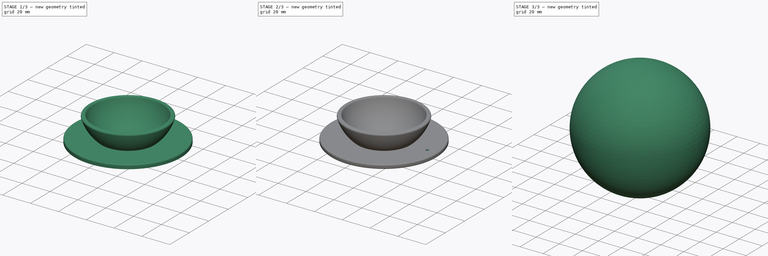
[diagram: build sequence overview — one tinted view per stage of 3, left to right]
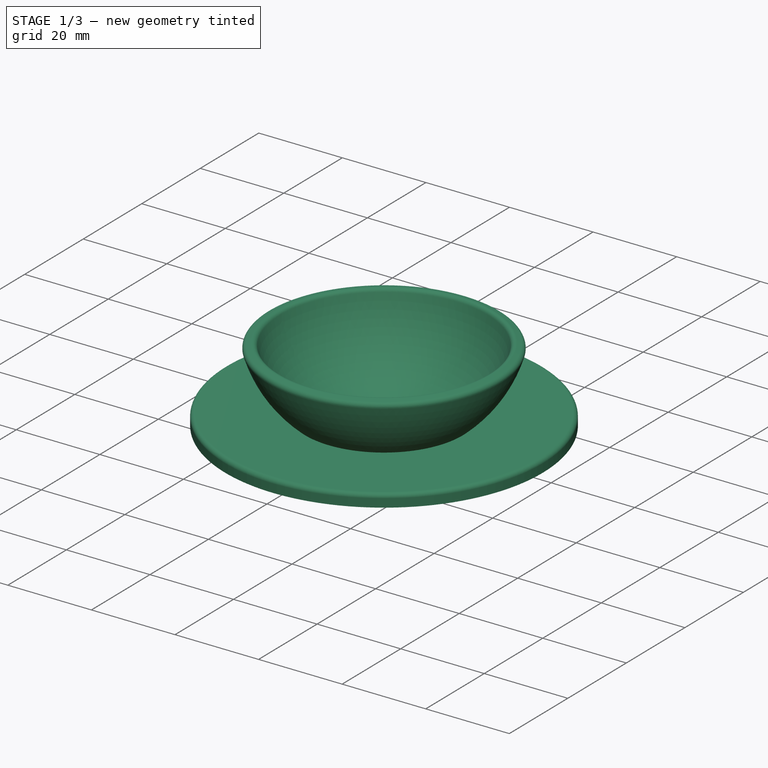
[diagram: stage 1 of 3 — iso view after this stage's code; geometry added in this stage tinted green]
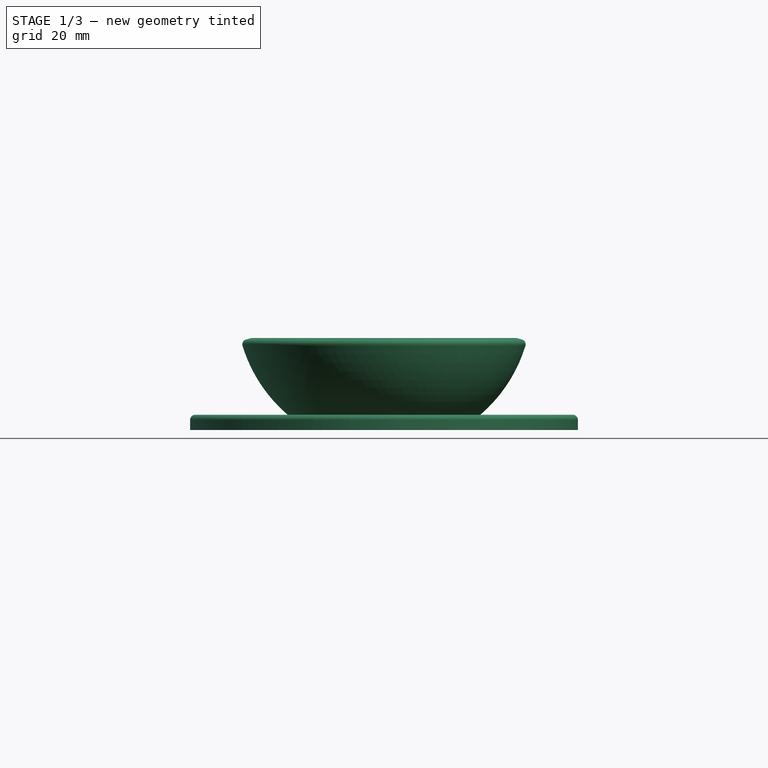
[diagram: stage 1 of 3 — front view after this stage's code; geometry added in this stage tinted green]
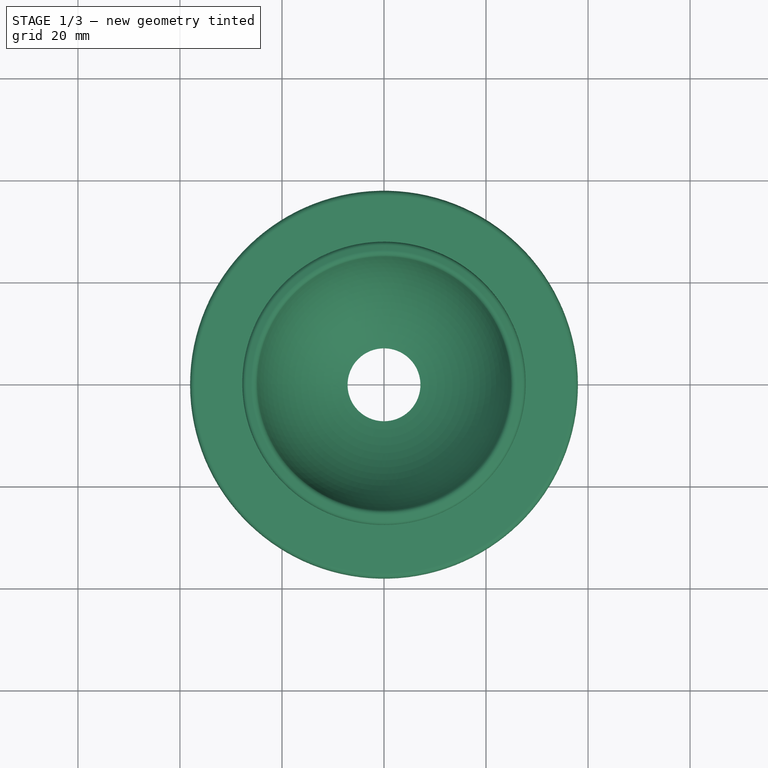
[diagram: stage 1 of 3 — top view after this stage's code; geometry added in this stage tinted green]
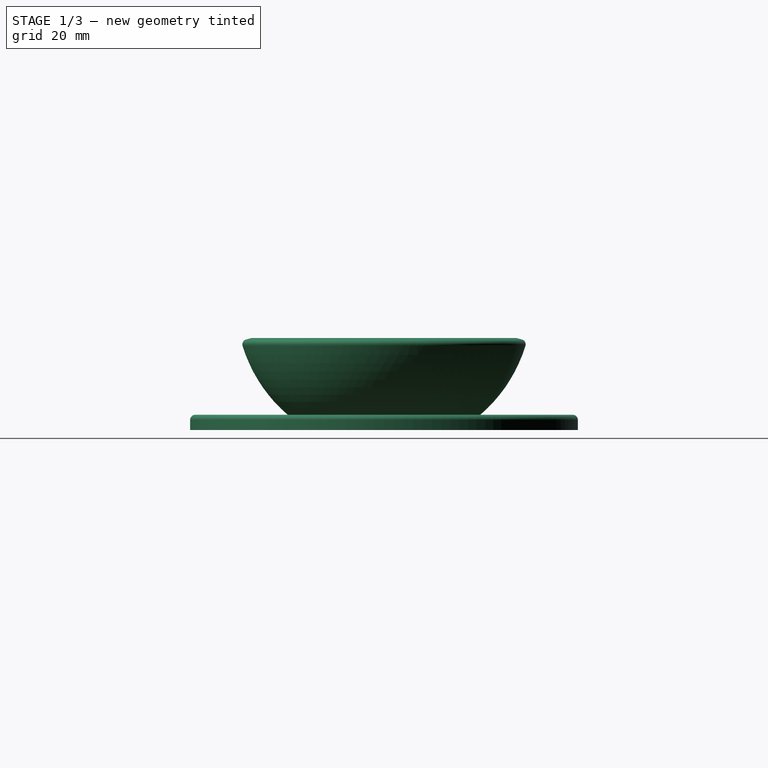
[diagram: stage 1 of 3 — right view after this stage's code; geometry added in this stage tinted green]
FCSTD DOCUMENT  (FreeCAD 1.0R39319 (Git))
Label: mouse
License: All rights reserved
LicenseURL: https://en.wikipedia.org/wiki/All_rights_reserved
objects: PartDesign::Body×2, PartDesign::AdditiveSphere×1, Sketcher::SketchObject×1, PartDesign::Revolution×1, PartDesign::Fillet×1, PartDesign::Chamfer×1, PartDesign::SubtractiveCylinder×1, PartDesign::PolarPattern×1
note: 21 computed .brp shape members not serialized (recipe doc carries the construction recipe); baked Part::Feature solids carry a one-line shape summary decoded from their .brp

FEATURE [PartDesign::Body] Body  label="trackBall"
  AllowCompound = false
  Group = -> [Sphere]
  Origin = -> Origin
  Tip = -> Sphere
FEATURE [Sketcher::SketchObject] Sketch
  ArcFitTolerance = 1e-06
  AttachmentSupport = -> [XZ_Plane001]
  FullyConstrained = true
  MakeInternals = false
  MapMode = 5
  Placement = pos=(0,0,0) rot=(1,0,0;1.5708rad)
  sketch-geometry (9):
    g0: ArcOfCircle [constr] CenterX=0 CenterY=29 CenterZ=0 NormalX=0 NormalY=0 NormalZ=1 AngleXU=0 Radius=26 StartAngle=3.40339 EndAngle=4.71239
    g1: ArcOfCircle [constr] CenterX=0 CenterY=29 CenterZ=0 NormalX=0 NormalY=0 NormalZ=1 AngleXU=0 Radius=29 StartAngle=3.40339 EndAngle=4.71239
    g2: LineSegment [constr] StartX=-28.0118 StartY=21.4942 StartZ=0 EndX=0 EndY=29 EndZ=0
    g3: LineSegment StartX=-7.14143 StartY=4 StartZ=0 EndX=-38.0118 EndY=4 EndZ=0
    g4: LineSegment StartX=-38.0118 StartY=4 StartZ=0 EndX=-38.0118 EndY=7 EndZ=0
    g5: LineSegment StartX=-38.0118 StartY=7 StartZ=0 EndX=-18.8944 EndY=7 EndZ=0
    g6: ArcOfCircle CenterX=2.77e-14 CenterY=29 CenterZ=0 NormalX=0 NormalY=0 NormalZ=1 AngleXU=0 Radius=29 StartAngle=3.40339 EndAngle=4.00279
    g7: ArcOfCircle CenterX=2.77e-14 CenterY=29 CenterZ=0 NormalX=0 NormalY=0 NormalZ=1 AngleXU=0 Radius=26 StartAngle=3.40339 EndAngle=4.43414
    g8: LineSegment StartX=-28.0118 StartY=21.4942 StartZ=0 EndX=-25.1141 EndY=22.2707 EndZ=0
  constraints (27):
    c: PointOnObject(g0,g-2)
    c: Coincident(g1,g0)
    c: Distance(g1,g0) = 3
    c: Coincident(g1,g-1)
    c: PointOnObject(g0,g-2)
    c: Coincident(g2,g1)
    c: Coincident(g2,g0)
    c: PointOnObject(g0,g2)
    c: Horizontal(g3)
    c: Coincident(g4,g3)
    c: Vertical(g4)
    c: Coincident(g5,g4)
    c: PointOnObject(g5,g1)
    c: Horizontal(g5)
    c: PointOnObject(g3,g0)
    c: Radius(g0) = 26
    c: DistanceY(g4,g4) = 3
    c: Distance(g-1,g3) = 4
    c: Coincident(g7,g6)
    c: Coincident(g7,g3)
    c: Coincident(g7,g0)
    c: Coincident(g6,g5)
    c: Coincident(g6,g1)
    c: Angle(g2,g-2) = 1.309
    c: Distance(g1,g4) = 10
    c: Coincident(g8,g1)
    c: Coincident(g8,g0)
FEATURE [PartDesign::Revolution] Revolution
  Angle = 360
  Angle2 = 60
  Axis = (0,2e-16,1)
  Base = (0,0,0)
  Placement = pos=(0,0,0) rot=(1,0,0;1.5708rad)
  Profile = -> Sketch
  ReferenceAxis = -> Sketch [V_Axis]
  Refine = true
  Suppressed = false
  Type = 0
FEATURE [PartDesign::Fillet] Fillet
  Base = -> Revolution [Edge8,Edge6,Edge3]
  BaseFeature = -> Revolution
  Placement = pos=(0,0,0) rot=(1,0,0;1.5708rad)
  Radius = 1
  Refine = true
  SupportTransform = false
  Suppressed = false
  UseAllEdges = false
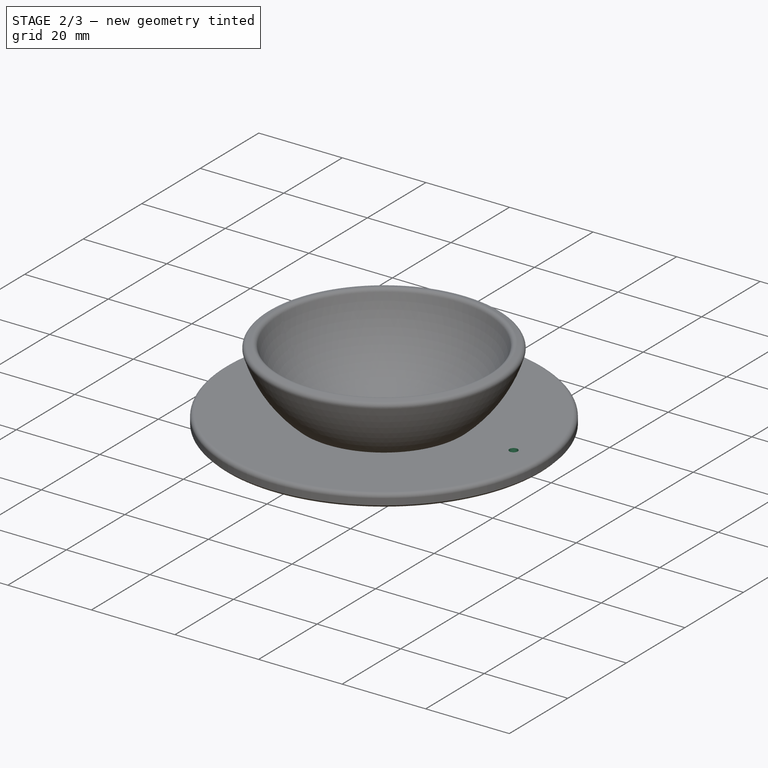
[diagram: stage 2 of 3 — iso view after this stage's code; geometry added in this stage tinted green]
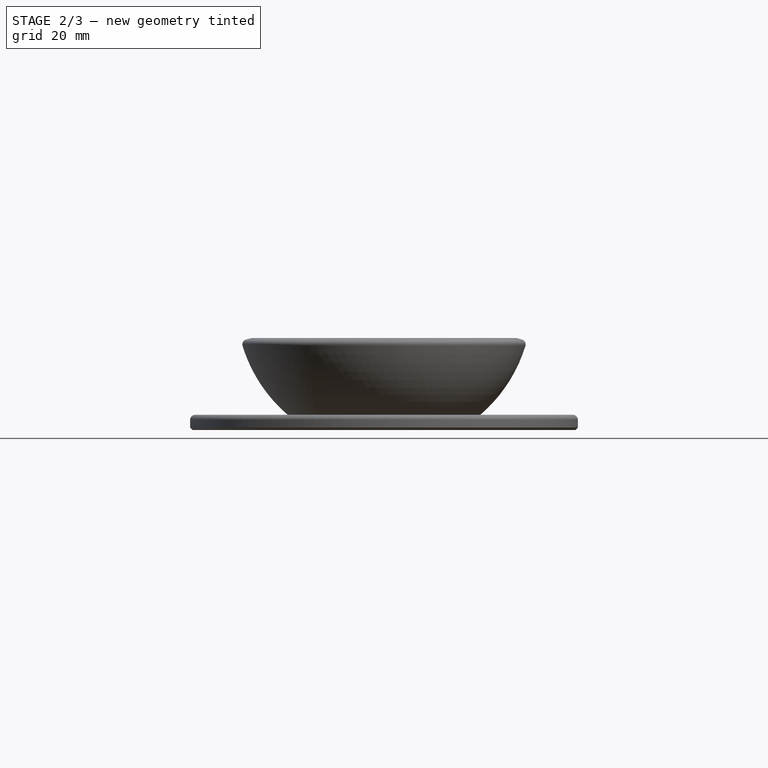
[diagram: stage 2 of 3 — front view after this stage's code; geometry added in this stage tinted green]
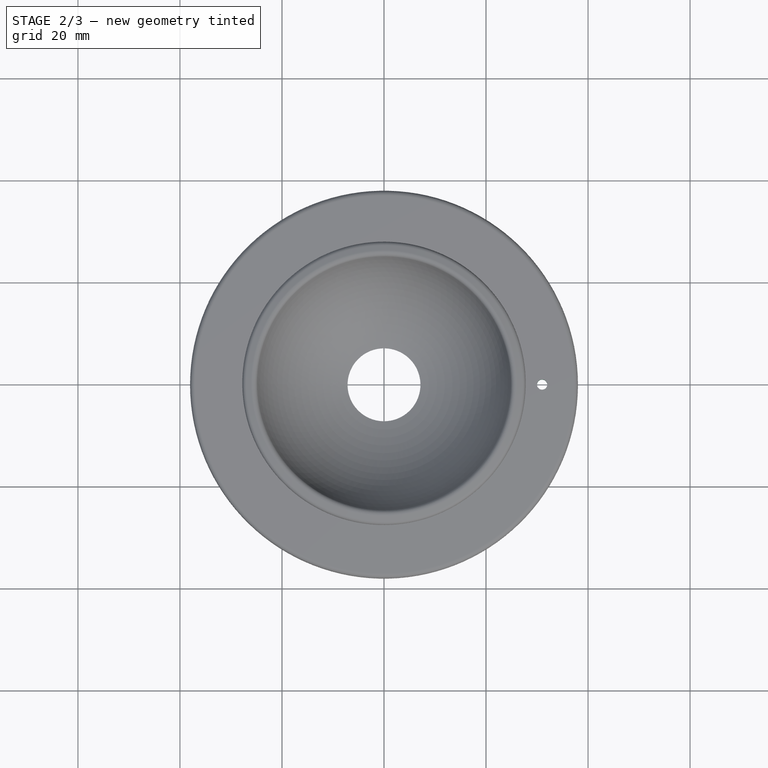
[diagram: stage 2 of 3 — top view after this stage's code; geometry added in this stage tinted green]
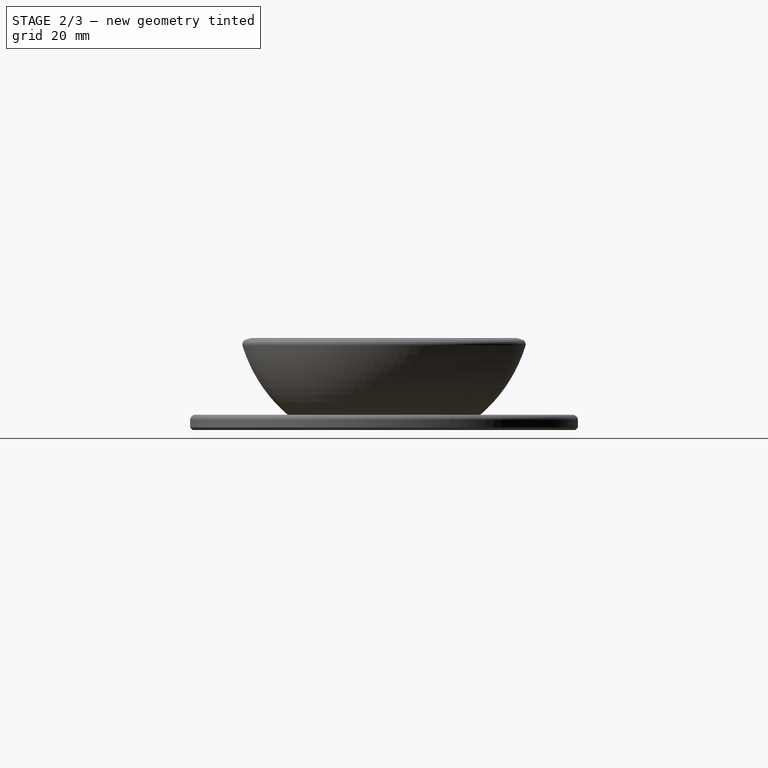
[diagram: stage 2 of 3 — right view after this stage's code; geometry added in this stage tinted green]
FEATURE [PartDesign::Chamfer] Chamfer
  Angle = 45
  Base = -> Fillet [Edge3]
  BaseFeature = -> Fillet
  ChamferType = 0
  FlipDirection = false
  Placement = pos=(0,0,0) rot=(1,0,0;1.5708rad)
  Refine = true
  Size = 0.5
  Size2 = 1
  SupportTransform = false
  Suppressed = false
  UseAllEdges = false
FEATURE [PartDesign::SubtractiveCylinder] Cylinder
  Angle = 360
  AttacherType = Attacher::AttachEngine3D
  AttachmentOffset = pos=(31,0,0) rot=(0,0,1;0rad)
  AttachmentSupport = -> [X_Axis001]
  BaseFeature = -> Chamfer
  FirstAngle = 0
  Height = 10
  MapMode = 2
  Placement = pos=(31,0,0) rot=(0,0,1;0rad)
  Radius = 1
  Refine = true
  SecondAngle = 0
  Suppressed = false
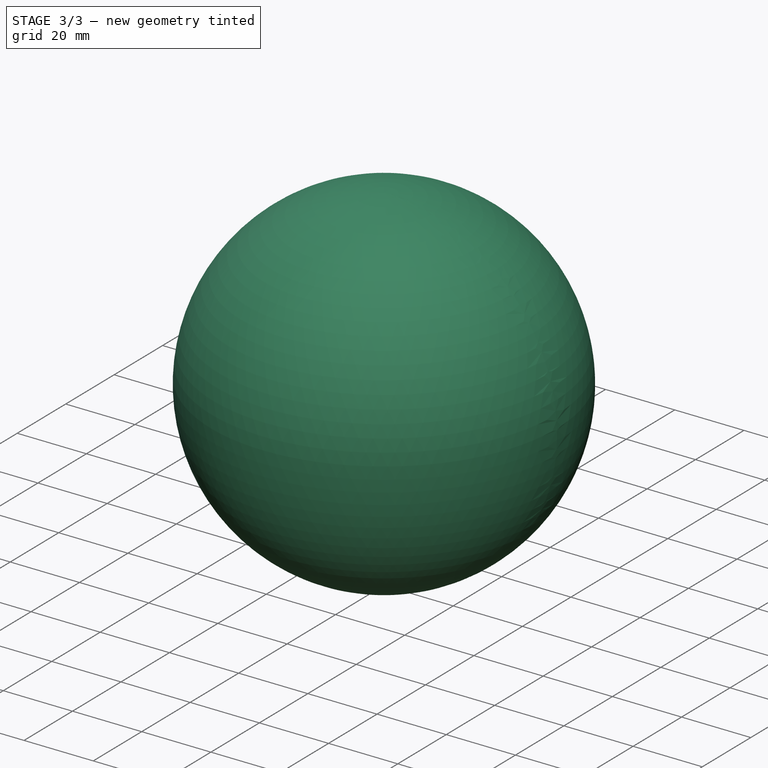
[diagram: stage 3 of 3 — iso view after this stage's code; geometry added in this stage tinted green]
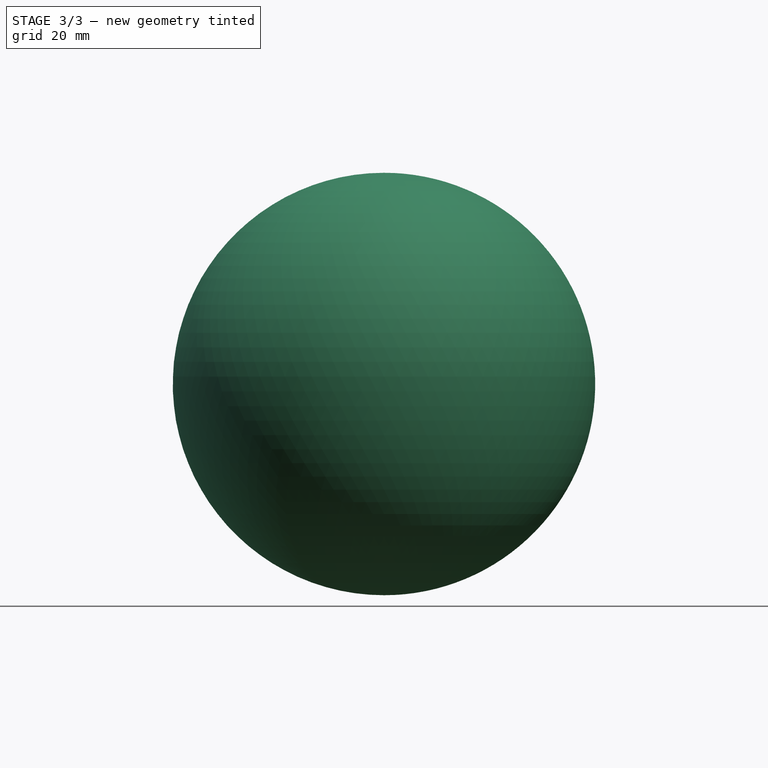
[diagram: stage 3 of 3 — front view after this stage's code; geometry added in this stage tinted green]
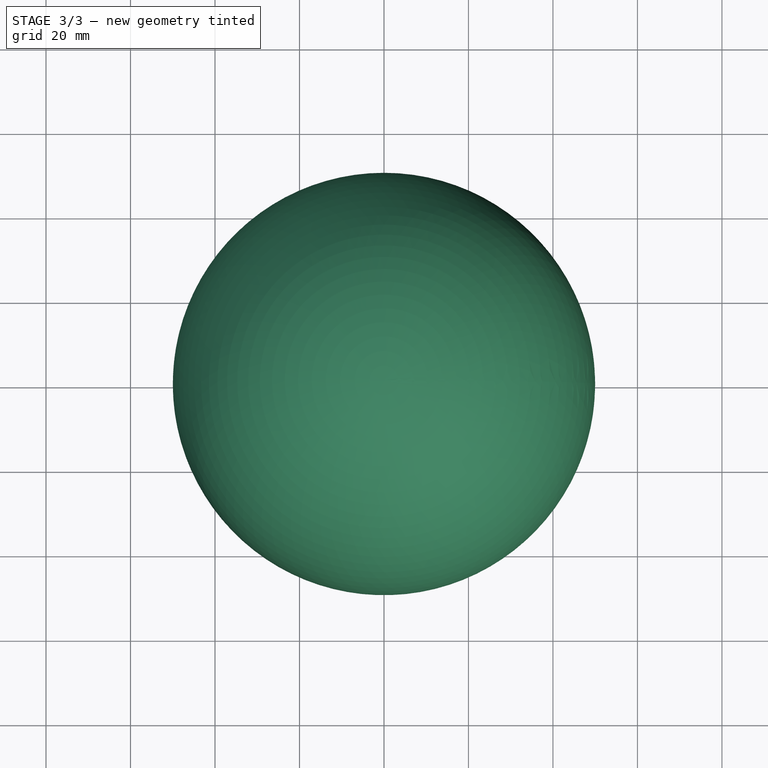
[diagram: stage 3 of 3 — top view after this stage's code; geometry added in this stage tinted green]
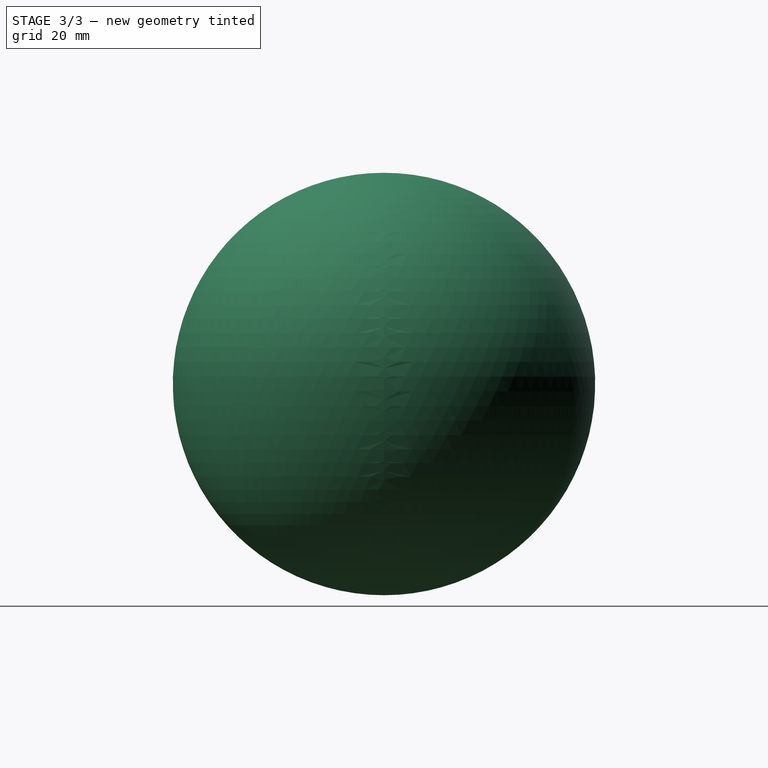
[diagram: stage 3 of 3 — right view after this stage's code; geometry added in this stage tinted green]
FEATURE [PartDesign::AdditiveSphere] Sphere
  Angle1 = -90
  Angle2 = 90
  Angle3 = 360
  AttacherType = Attacher::AttachEngine3D
  AttachmentSupport = -> [XY_Plane]
  MapMode = 5
  Radius = 50
  Refine = true
  Suppressed = false
FEATURE [PartDesign::PolarPattern] PolarPattern
  Angle = 360
  Axis = -> Z_Axis001
  BaseFeature = -> Cylinder
  Mode = 0
  Occurrences = 4
  Offset = 120
  Originals = -> [Cylinder]
  Placement = pos=(31,0,0) rot=(0,0,1;0rad)
  Refine = true
  Suppressed = false
  TransformMode = 0
FEATURE [PartDesign::Body] Body001  label="ballHousing"
  AllowCompound = false
  Group = -> [Sketch,Revolution,Fillet,Chamfer,Cylinder,PolarPattern]
  Origin = -> Origin001
  Tip = -> PolarPattern
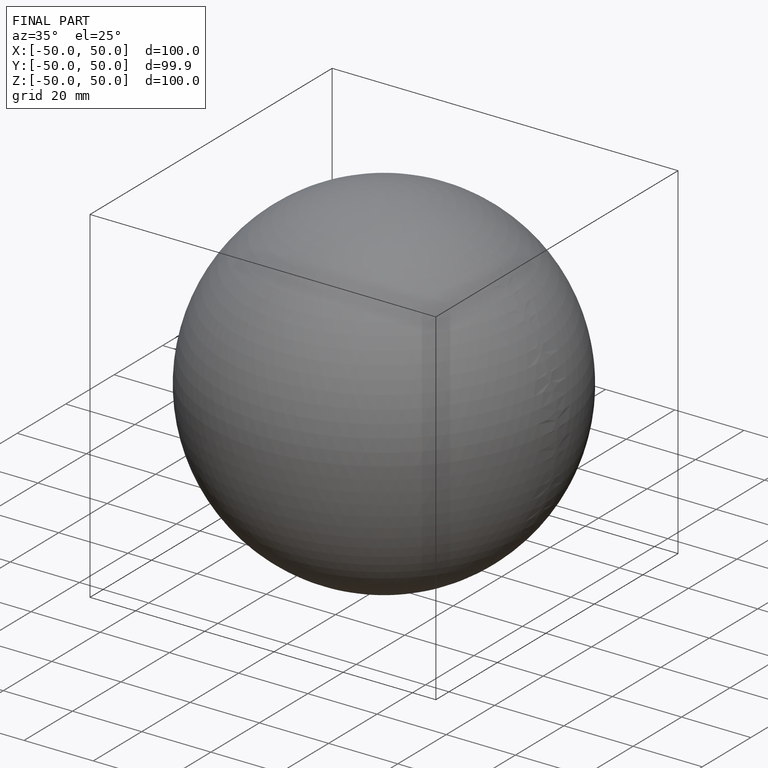
[diagram: finished part — iso view with bounding-box wireframe]
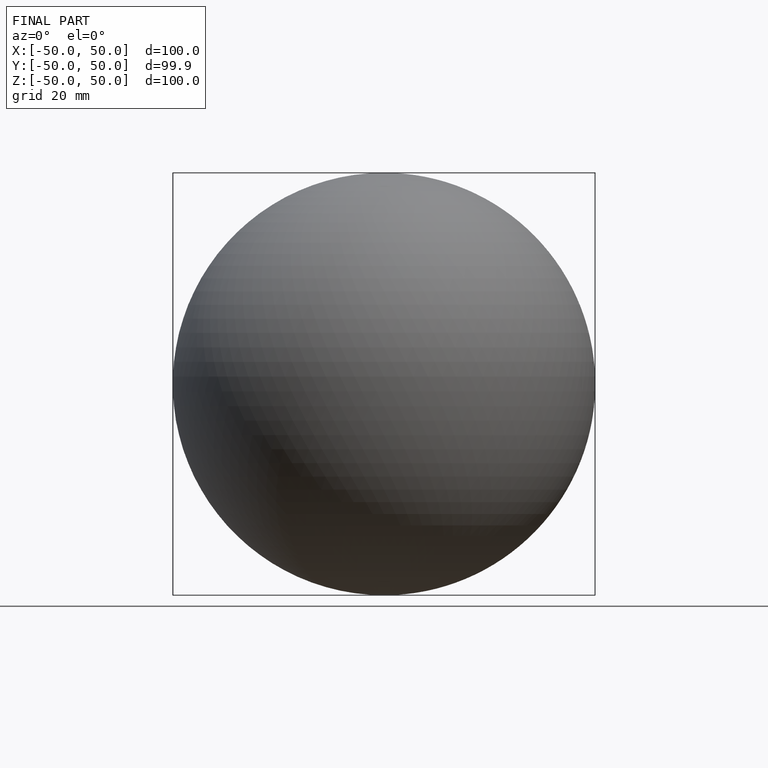
[diagram: finished part — front view with bounding-box wireframe]
